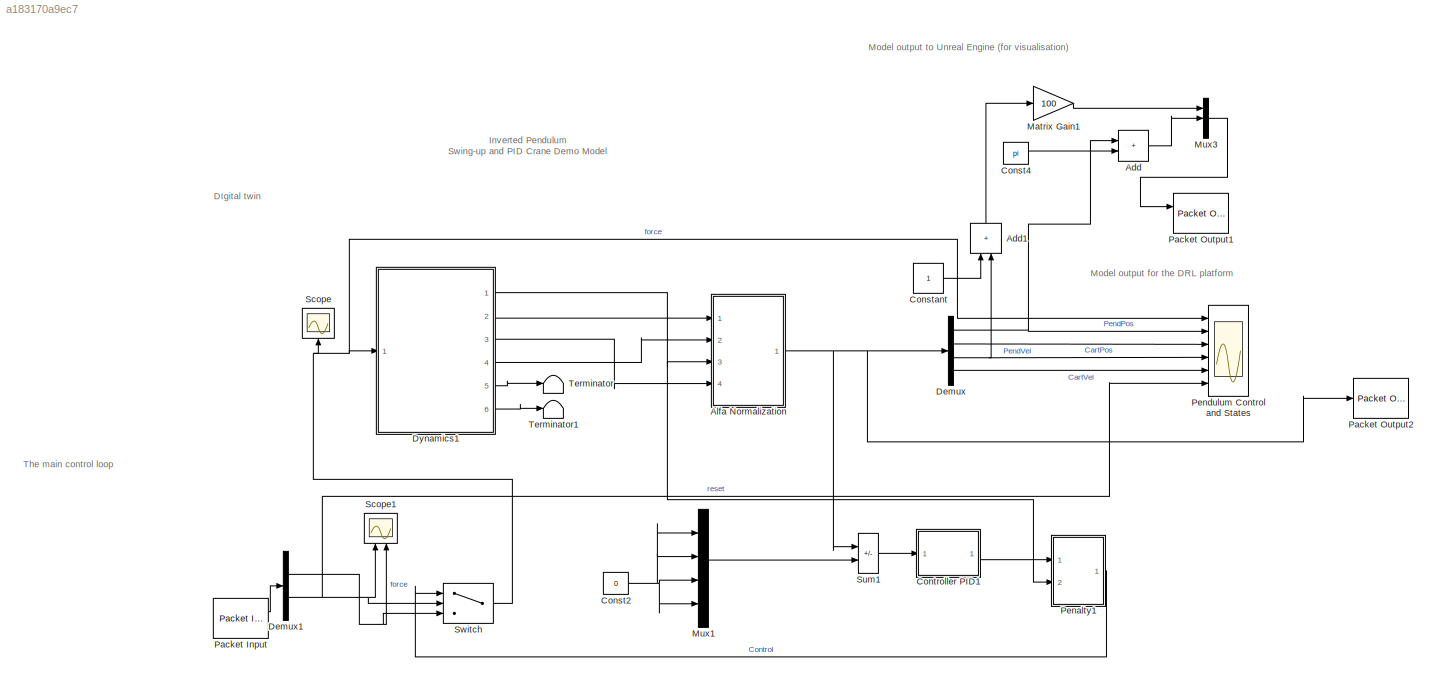
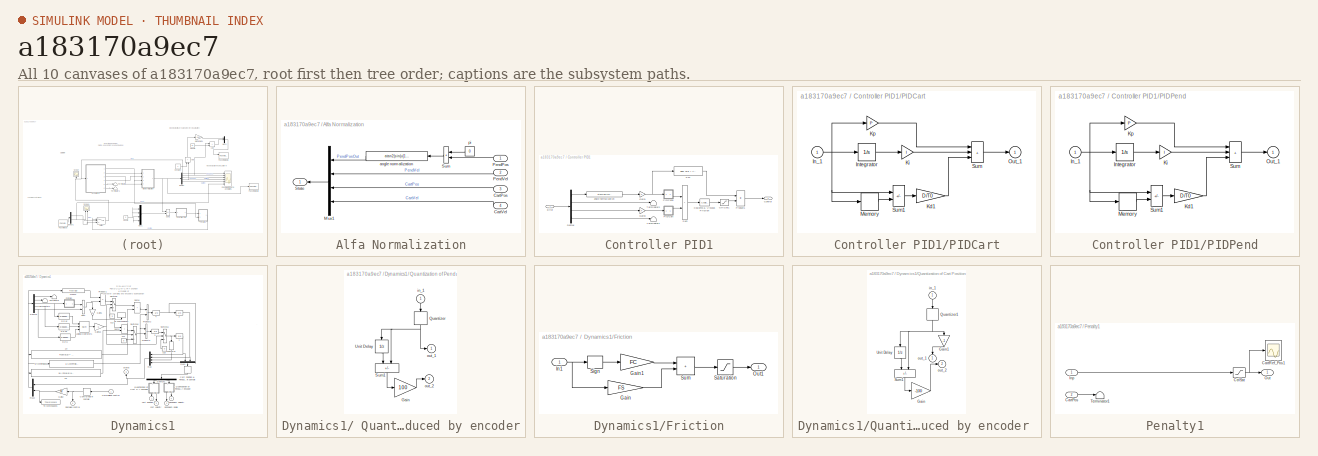
[diagram: thumbnail index - all 10 canvases of the model, root first then tree order]
MODEL slx_a183170a9ec7
KIND model
CONFIG AbsTol = 1e-6
CONFIG EnableMultiTasking = off
CONFIG FixedStep = 0.01
CONFIG MaxStep = auto
CONFIG MinStep = auto
CONFIG RelTol = 1e-3
CONFIG SampleTimeConstraint = Unconstrained
CONFIG SolverName = ode5
CONFIG StartTime = 0.0
CONFIG StopTime = inf
BLOCK [Sum] Add
  IconShape = rectangular
  Ports = [2, 1]
BLOCK [Sum] Add1
  IconShape = rectangular
  NameLocation = right
  Ports = [2, 1]
BLOCK [SubSystem] Alfa Normalization
  Ports = [4, 1]
  RequestExecContextInheritance = off
BLOCK [Inport] Alfa Normalization/CartPos
  Port = 3
BLOCK [Inport] Alfa Normalization/CartVel
  Port = 4
BLOCK [Mux] Alfa Normalization/Mux1
  NameLocation = top
  Ports = [4, 1]
BLOCK [Inport] Alfa Normalization/PendPos
BLOCK [Inport] Alfa Normalization/PendVel
  Port = 2
BLOCK [Outport] Alfa Normalization/State
  InitialOutput = 0
  VectorParamsAs1DForOutWhenUnconnected = off
BLOCK [Sum] Alfa Normalization/Sum
  IconShape = rectangular
  InputSameDT = on
  NameLocation = top
  OutDataTypeStr = Inherit: Same as first input
  Ports = [2, 1]
  SaturateOnIntegerOverflow = on
BLOCK [Fcn] Alfa Normalization/angle normalization
  Expr = atan2(sin(u[1]),cos(u[1]))
  NameLocation = top
BLOCK [Constant] Alfa Normalization/pi
  NameLocation = top
  Value = 0
BLOCK [Constant] Const2
  Value = 0
BLOCK [Constant] Const4
  Value = pi
BLOCK [Constant] Constant
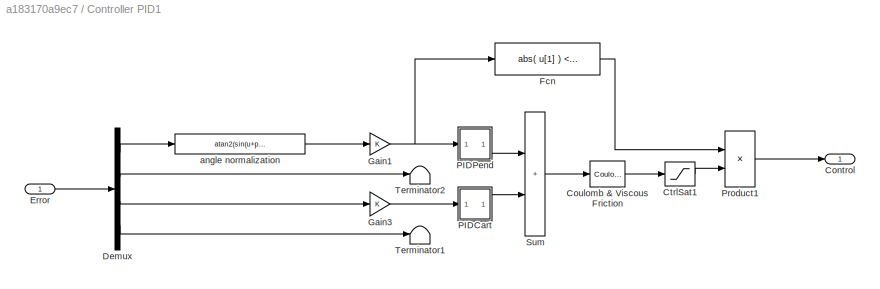
BLOCK [SubSystem] Controller PID1
  Ports = [1, 1]
  RequestExecContextInheritance = off
BLOCK [Outport] Controller PID1/Control
  InitialOutput = 0
  NameLocation = top
  VectorParamsAs1DForOutWhenUnconnected = off
BLOCK [Reference] Controller PID1/Coulomb & Viscous Friction  REF=simulink/Discontinuities/Coulomb &
Viscous Friction
  Ports = [1, 1]
  SourceBlock = simulink/Discontinuities/Coulomb &\nViscous Friction
  SourceProductBaseCode = SL
  SourceType = Coulombic and Viscous Friction
BLOCK [Saturate] Controller PID1/CtrlSat1
  LowerLimit = -Umax
  UpperLimit = Umax
BLOCK [Demux] Controller PID1/Demux
  DisplayOption = none
  Ports = [1, 4]
BLOCK [Inport] Controller PID1/Error
  NameLocation = top
BLOCK [Fcn] Controller PID1/Fcn
  Expr = abs( u[1] ) < zone
BLOCK [Gain] Controller PID1/Gain1
  OutDataTypeStr = Inherit: Same as input
  ParamDataTypeStr = Inherit: Same as input
  SaturateOnIntegerOverflow = on
BLOCK [Gain] Controller PID1/Gain3
  OutDataTypeStr = Inherit: Same as input
  ParamDataTypeStr = Inherit: Same as input
  SaturateOnIntegerOverflow = on
BLOCK [SubSystem] Controller PID1/PIDCart
  Ports = [1, 1]
  RequestExecContextInheritance = off
BLOCK [Inport] Controller PID1/PIDCart/In_1
BLOCK [Integrator] Controller PID1/PIDCart/Integrator
  LimitOutput = on
  LowerSaturationLimit = -1
  Ports = [1, 1]
  UpperSaturationLimit = 1
BLOCK [Gain] Controller PID1/PIDCart/Kd1
  Gain = D/T0
  OutDataTypeStr = Inherit: Same as input
  ParamDataTypeStr = Inherit: Same as input
  SaturateOnIntegerOverflow = on
BLOCK [Gain] Controller PID1/PIDCart/Ki
  Gain = I
  OutDataTypeStr = Inherit: Same as input
  ParamDataTypeStr = Inherit: Same as input
  SaturateOnIntegerOverflow = on
BLOCK [Gain] Controller PID1/PIDCart/Kp
  Gain = P
  OutDataTypeStr = Inherit: Same as input
  ParamDataTypeStr = Inherit: Same as input
  SaturateOnIntegerOverflow = on
BLOCK [Memory] Controller PID1/PIDCart/Memory
BLOCK [Outport] Controller PID1/PIDCart/Out_1
  InitialOutput = 0
  VectorParamsAs1DForOutWhenUnconnected = off
BLOCK [Sum] Controller PID1/PIDCart/Sum
  IconShape = rectangular
  InputSameDT = on
  Inputs = +++
  OutDataTypeStr = Inherit: Same as first input
  Ports = [3, 1]
  SaturateOnIntegerOverflow = on
BLOCK [Sum] Controller PID1/PIDCart/Sum1
  IconShape = rectangular
  InputSameDT = on
  Inputs = +-
  OutDataTypeStr = Inherit: Same as first input
  Ports = [2, 1]
  SaturateOnIntegerOverflow = on
BLOCK [SubSystem] Controller PID1/PIDPend
  Ports = [1, 1]
  RequestExecContextInheritance = off
BLOCK [Inport] Controller PID1/PIDPend/In_1
BLOCK [Integrator] Controller PID1/PIDPend/Integrator
  LimitOutput = on
  LowerSaturationLimit = -1
  Ports = [1, 1]
  UpperSaturationLimit = 1
BLOCK [Gain] Controller PID1/PIDPend/Kd1
  Gain = D/T0
  OutDataTypeStr = Inherit: Same as input
  ParamDataTypeStr = Inherit: Same as input
  SaturateOnIntegerOverflow = on
BLOCK [Gain] Controller PID1/PIDPend/Ki
  Gain = I
  OutDataTypeStr = Inherit: Same as input
  ParamDataTypeStr = Inherit: Same as input
  SaturateOnIntegerOverflow = on
BLOCK [Gain] Controller PID1/PIDPend/Kp
  Gain = P
  OutDataTypeStr = Inherit: Same as input
  ParamDataTypeStr = Inherit: Same as input
  SaturateOnIntegerOverflow = on
BLOCK [Memory] Controller PID1/PIDPend/Memory
BLOCK [Outport] Controller PID1/PIDPend/Out_1
  InitialOutput = 0
  VectorParamsAs1DForOutWhenUnconnected = off
BLOCK [Sum] Controller PID1/PIDPend/Sum
  IconShape = rectangular
  InputSameDT = on
  Inputs = +++
  OutDataTypeStr = Inherit: Same as first input
  Ports = [3, 1]
  SaturateOnIntegerOverflow = on
BLOCK [Sum] Controller PID1/PIDPend/Sum1
  IconShape = rectangular
  InputSameDT = on
  Inputs = +-
  OutDataTypeStr = Inherit: Same as first input
  Ports = [2, 1]
  SaturateOnIntegerOverflow = on
BLOCK [Product] Controller PID1/Product1
  InputSameDT = on
  OutDataTypeStr = Inherit: Same as first input
  Ports = [2, 1]
  RndMeth = Zero
  SaturateOnIntegerOverflow = on
BLOCK [Sum] Controller PID1/Sum
  IconShape = rectangular
  InputSameDT = on
  OutDataTypeStr = Inherit: Same as first input
  Ports = [2, 1]
  SaturateOnIntegerOverflow = on
BLOCK [Terminator] Controller PID1/Terminator1
BLOCK [Terminator] Controller PID1/Terminator2
BLOCK [Fcn] Controller PID1/angle normalization
  Expr = atan2(sin(u+pi),cos(u+pi))
BLOCK [Demux] Demux
  DisplayOption = none
  Ports = [1, 4]
BLOCK [Demux] Demux1
  DisplayOption = none
  Outputs = 2
  Ports = [1, 2]
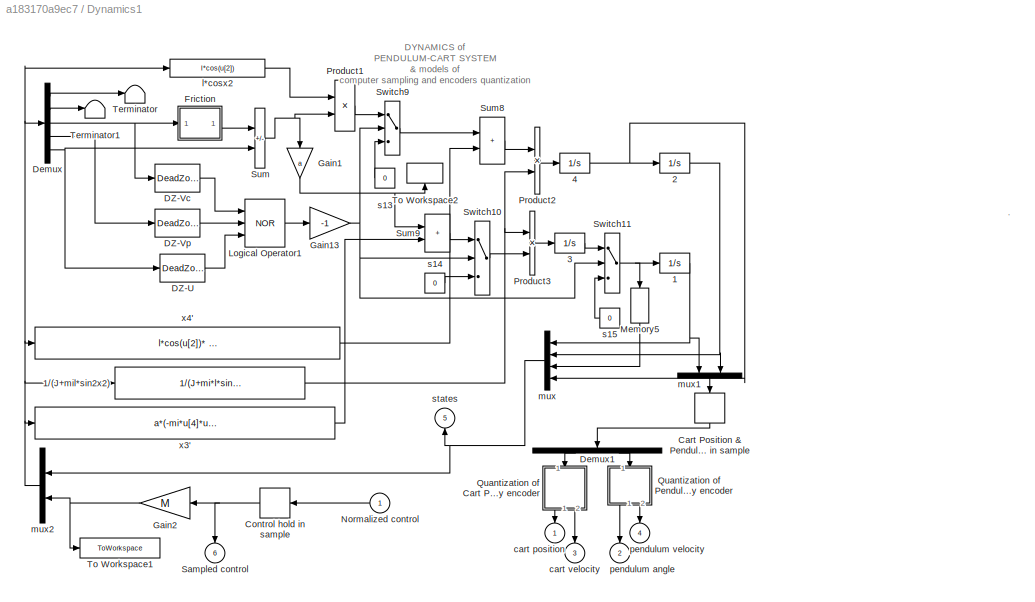
BLOCK [SubSystem] Dynamics1
  Ports = [1, 6]
  RequestExecContextInheritance = off
  ShowPortLabels = none
BLOCK [SubSystem] Dynamics1/ Quantization of Pendulum Angle introduced by encoder
  NameLocation = right
  Ports = [1, 2]
  RequestExecContextInheritance = off
  ShowPortLabels = none
BLOCK [Gain] Dynamics1/ Quantization of Pendulum Angle introduced by encoder/Gain
  Gain = 100
  OutDataTypeStr = Inherit: Same as input
  ParamDataTypeStr = Inherit: Same as input
  SaturateOnIntegerOverflow = on
BLOCK [Quantizer] Dynamics1/ Quantization of Pendulum Angle introduced by encoder/Quantizer
  NameLocation = left
  QuantizationInterval = 0.001534
BLOCK [Sum] Dynamics1/ Quantization of Pendulum Angle introduced by encoder/Sum1
  IconShape = rectangular
  InputSameDT = on
  Inputs = -+
  NameLocation = left
  OutDataTypeStr = Inherit: Same as first input
  Ports = [2, 1]
  SaturateOnIntegerOverflow = on
BLOCK [UnitDelay] Dynamics1/ Quantization of Pendulum Angle introduced by encoder/Unit Delay
  HasFrameUpgradeWarning = on
  InitialCondition = x_ini(2)
  NameLocation = left
  SampleTime = 0.01
BLOCK [Inport] Dynamics1/ Quantization of Pendulum Angle introduced by encoder/in_1
  NameLocation = right
BLOCK [Outport] Dynamics1/ Quantization of Pendulum Angle introduced by encoder/out_1
  InitialOutput = 0
  NameLocation = top
BLOCK [Outport] Dynamics1/ Quantization of Pendulum Angle introduced by encoder/out_2
  InitialOutput = 0
  Port = 2
BLOCK [Integrator] Dynamics1/1
  InitialCondition = x_ini(1)
  Ports = [1, 1]
BLOCK [Fcn] Dynamics1/1//(J+mil*sin2x2)
  Expr = 1/(J+mi*l*sin(u[2])*sin(u[2]))
BLOCK [Integrator] Dynamics1/2
  InitialCondition = x_ini(2)
  Ports = [1, 1]
BLOCK [Integrator] Dynamics1/3
  InitialCondition = x_ini(3)
  Ports = [1, 1]
BLOCK [Integrator] Dynamics1/4
  InitialCondition = x_ini(4)
  Ports = [1, 1]
BLOCK [ZeroOrderHold] Dynamics1/Cart Position & Pendulum Angle hold in sample
  NameLocation = left
  SampleTime = 0.01
BLOCK [ZeroOrderHold] Dynamics1/Control hold in sample
  SampleTime = 0.01
BLOCK [DeadZone] Dynamics1/DZ-U
  LowerValue = -DZu
  UpperValue = DZu
BLOCK [DeadZone] Dynamics1/DZ-Vc
  LowerValue = -DZcv
  UpperValue = DZcv
BLOCK [DeadZone] Dynamics1/DZ-Vp
  LowerValue = -DZcp
  UpperValue = DZcp
BLOCK [Demux] Dynamics1/Demux
  DisplayOption = none
  Outputs = 5
  Ports = [1, 5]
BLOCK [Demux] Dynamics1/Demux1
  DisplayOption = none
  NameLocation = left
  Outputs = 2
  Ports = [1, 2]
BLOCK [SubSystem] Dynamics1/Friction
  NameLocation = top
  Ports = [1, 1]
  RequestExecContextInheritance = off
BLOCK [Gain] Dynamics1/Friction/Gain
  Gain = FS
  OutDataTypeStr = Inherit: Same as input
  ParamDataTypeStr = Inherit: Same as input
  SaturateOnIntegerOverflow = on
BLOCK [Gain] Dynamics1/Friction/Gain1
  Gain = FC
  OutDataTypeStr = Inherit: Same as input
  ParamDataTypeStr = Inherit: Same as input
  SaturateOnIntegerOverflow = on
BLOCK [Inport] Dynamics1/Friction/In1
BLOCK [Outport] Dynamics1/Friction/Out1
  InitialOutput = 0
BLOCK [Saturate] Dynamics1/Friction/Saturation
  LowerLimit = -1
  UpperLimit = 1
BLOCK [Signum] Dynamics1/Friction/Sign
BLOCK [Sum] Dynamics1/Friction/Sum
  IconShape = rectangular
  InputSameDT = on
  OutDataTypeStr = Inherit: Same as first input
  Ports = [2, 1]
  SaturateOnIntegerOverflow = on
BLOCK [Gain] Dynamics1/Gain1
  Gain = a
  NameLocation = right
  OutDataTypeStr = Inherit: Same as input
  ParamDataTypeStr = Inherit: Same as input
  SaturateOnIntegerOverflow = on
BLOCK [Gain] Dynamics1/Gain13
  Gain = -1
  OutDataTypeStr = Inherit: Same as input
  ParamDataTypeStr = Inherit: Same as input
  SaturateOnIntegerOverflow = on
BLOCK [Gain] Dynamics1/Gain2
  Gain = M
  OutDataTypeStr = Inherit: Same as input
  ParamDataTypeStr = Inherit: Same as input
  SaturateOnIntegerOverflow = on
BLOCK [Logic] Dynamics1/Logical Operator1
  Inputs = 3
  Operator = NOR
  Ports = [3, 1]
BLOCK [Memory] Dynamics1/Memory5
  NameLocation = right
BLOCK [Inport] Dynamics1/Normalized control
BLOCK [Product] Dynamics1/Product1
  InputSameDT = on
  OutDataTypeStr = Inherit: Same as first input
  Ports = [2, 1]
  RndMeth = Zero
  SaturateOnIntegerOverflow = on
BLOCK [Product] Dynamics1/Product2
  InputSameDT = on
  OutDataTypeStr = Inherit: Same as first input
  Ports = [2, 1]
  RndMeth = Zero
  SaturateOnIntegerOverflow = on
BLOCK [Product] Dynamics1/Product3
  InputSameDT = on
  OutDataTypeStr = Inherit: Same as first input
  Ports = [2, 1]
  RndMeth = Zero
  SaturateOnIntegerOverflow = on
BLOCK [SubSystem] Dynamics1/Quantization of Cart Position introduced by encoder 
  NameLocation = left
  Ports = [1, 2]
  RequestExecContextInheritance = off
  ShowPortLabels = none
BLOCK [Gain] Dynamics1/Quantization of Cart Position introduced by encoder /Gain
  Gain = -100
  OutDataTypeStr = Inherit: Same as input
  ParamDataTypeStr = Inherit: Same as input
  SaturateOnIntegerOverflow = on
BLOCK [Gain] Dynamics1/Quantization of Cart Position introduced by encoder /Gain1
  Gain = -1
  NameLocation = left
BLOCK [Quantizer] Dynamics1/Quantization of Cart Position introduced by encoder /Quantizer1
  NameLocation = left
  QuantizationInterval = 5.7053e-005
BLOCK [Sum] Dynamics1/Quantization of Cart Position introduced by encoder /Sum1
  IconShape = rectangular
  InputSameDT = on
  Inputs = -+
  NameLocation = left
  OutDataTypeStr = Inherit: Same as first input
  Ports = [2, 1]
  SaturateOnIntegerOverflow = on
BLOCK [UnitDelay] Dynamics1/Quantization of Cart Position introduced by encoder /Unit Delay
  HasFrameUpgradeWarning = on
  InitialCondition = x_ini(1)
  NameLocation = left
  SampleTime = 0.01
BLOCK [Inport] Dynamics1/Quantization of Cart Position introduced by encoder /in_1
  NameLocation = right
BLOCK [Outport] Dynamics1/Quantization of Cart Position introduced by encoder /out_1
  InitialOutput = 0
  NameLocation = right
BLOCK [Outport] Dynamics1/Quantization of Cart Position introduced by encoder /out_2
  InitialOutput = 0
  Port = 2
BLOCK [Outport] Dynamics1/Sampled control
  InitialOutput = 0
  NameLocation = right
  Port = 6
BLOCK [Sum] Dynamics1/Sum
  IconShape = rectangular
  InputSameDT = on
  Inputs = -+
  OutDataTypeStr = Inherit: Same as first input
  Ports = [2, 1]
  SaturateOnIntegerOverflow = on
BLOCK [Sum] Dynamics1/Sum8
  IconShape = rectangular
  InputSameDT = on
  OutDataTypeStr = Inherit: Same as first input
  Ports = [2, 1]
  SaturateOnIntegerOverflow = on
BLOCK [Sum] Dynamics1/Sum9
  IconShape = rectangular
  InputSameDT = on
  OutDataTypeStr = Inherit: Same as first input
  Ports = [2, 1]
  SaturateOnIntegerOverflow = on
BLOCK [Switch] Dynamics1/Switch10
BLOCK [Switch] Dynamics1/Switch11
BLOCK [Switch] Dynamics1/Switch9
BLOCK [Terminator] Dynamics1/Terminator
BLOCK [Terminator] Dynamics1/Terminator1
BLOCK [ToWorkspace] Dynamics1/To Workspace1
  MaxDataPoints = 100000
  NameLocation = top
  Ports = [1]
  VariableName = Control_Newton
BLOCK [ToWorkspace] Dynamics1/To Workspace2
  MaxDataPoints = 100000
  NameLocation = right
  Ports = [1]
  VariableName = fric
BLOCK [Outport] Dynamics1/cart position
  InitialOutput = 0
  NameLocation = left
BLOCK [Outport] Dynamics1/cart velocity
  InitialOutput = 0
  NameLocation = left
  Port = 3
BLOCK [Fcn] Dynamics1/l*cosx2
  Expr = l*cos(u[2])
BLOCK [Mux] Dynamics1/mux
  Ports = [4, 1]
BLOCK [Mux] Dynamics1/mux1
  Inputs = 2
  NameLocation = right
  Ports = [2, 1]
BLOCK [Mux] Dynamics1/mux2
  Inputs = [4 1]
  Ports = [2, 1]
BLOCK [Outport] Dynamics1/pendulum angle
  InitialOutput = 0
  NameLocation = right
  Port = 2
BLOCK [Outport] Dynamics1/pendulum velocity
  InitialOutput = 0
  NameLocation = right
  Port = 4
BLOCK [Constant] Dynamics1/s13
  NameLocation = top
  Value = 0
BLOCK [Constant] Dynamics1/s14
  NameLocation = top
  Value = 0
BLOCK [Constant] Dynamics1/s15
  NameLocation = top
  Value = 0
BLOCK [Outport] Dynamics1/states
  InitialOutput = 0
  NameLocation = left
  Port = 5
BLOCK [Fcn] Dynamics1/x3'
  Expr = a*(-mi*u[4]*u[4]*sin(u[2]) )+l*cos(u[2])*(mi*g*sin(u[2])-fp*u[4])
BLOCK [Fcn] Dynamics1/x4'
  Expr = l*cos(u[2])* (-mi*u[4]*u[4]*sin(u[2])) + mi*g*sin(u[2])-fp*u[4]
BLOCK [Gain] Matrix Gain1
  Gain = 100
  OutDataTypeStr = Inherit: Same as input
  ParamDataTypeStr = Inherit: Same as input
  SaturateOnIntegerOverflow = on
BLOCK [Mux] Mux1
  Ports = [4, 1]
BLOCK [Mux] Mux3
  DisplayOption = bar
  Inputs = 3
  Ports = [3, 1]
BLOCK [Reference] Packet Input  REF=sldrtlib/Packet Input
  AttributesFormatString = UDP Protocol [16384]
  Ports = [0, 2]
  SourceBlock = sldrtlib/Packet Input
  SourceProductBaseCode = WT
  SourceType = Simulink Desktop Real-Time Packet Input
BLOCK [Reference] Packet Output1  REF=sldrtlib/Packet Output
  AttributesFormatString = UDP Protocol [9999]
  Ports = [2, 1]
  SourceBlock = sldrtlib/Packet Output
  SourceProductBaseCode = WT
  SourceType = Simulink Desktop Real-Time Packet Output
BLOCK [Reference] Packet Output2  REF=sldrtlib/Packet Output
  AttributesFormatString = UDP Protocol [16385]
  Ports = [1, 1]
  SourceBlock = sldrtlib/Packet Output
  SourceProductBaseCode = WT
  SourceType = Simulink Desktop Real-Time Packet Output
BLOCK [SubSystem] Penalty1
  Ports = [2, 1]
  RequestExecContextInheritance = off
BLOCK [Inport] Penalty1/CartPos
  Port = 2
BLOCK [Scope] Penalty1/CartRef_Pos1
  Floating = off
  NumInputPorts = 1
  Ports = [1]
  ScopeSpecificationString = Simulink.scopes.TimeScopeBlockCfg('CurrentConfiguration', extmgr.ConfigurationSet(extmgr.Configuration('Core','General UI',true),extmgr.Configuration('Core','Source UI',true),extmgr.Configuration('Sources','WiredSimulink',true,'DataLogging',true,'DataLoggingVariableName','Cart_refpos2','DataLoggingSaveFormat','StructureWithTime','DataLoggingMaxPoints','50000','DataLoggingLimitDataPoints',true,'Dat...<+1763ch>
BLOCK [Saturate] Penalty1/CtrlSat
BLOCK [Inport] Penalty1/Inp
BLOCK [Outport] Penalty1/Out
  VectorParamsAs1DForOutWhenUnconnected = off
BLOCK [Terminator] Penalty1/Terminator1
BLOCK [Scope] Pendulum Control and States
  ExtModeLoggingTrig = on
  ExtModeUploadOption = log
  Floating = off
  NumInputPorts = 6
  Ports = [6]
  ScopeSpecificationString = Simulink.scopes.TimeScopeBlockCfg('CurrentConfiguration', extmgr.ConfigurationSet(extmgr.Configuration('Core','General UI',true),extmgr.Configuration('Core','Source UI',true),extmgr.Configuration('Sources','WiredSimulink',true,'DataLogging',true,'DataLoggingVariableName','States','DataLoggingSaveFormat','StructureWithTime','DataLoggingMaxPoints','50000','DataLoggingLimitDataPoints',true,'DataLoggi...<+5170ch>
BLOCK [Scope] Scope
  Floating = off
  NameLocation = right
  NumInputPorts = 1
  Ports = [1]
  ScopeSpecificationString = Simulink.scopes.TimeScopeBlockCfg('CurrentConfiguration', extmgr.ConfigurationSet(extmgr.Configuration('Core','General UI',true),extmgr.Configuration('Core','Source UI',true),extmgr.Configuration('Sources','WiredSimulink',true,'DataLoggingVariableName','ScopeData1'),extmgr.Configuration('Visuals','Time Domain',true,'SerializedDisplays',{struct('MinYLimReal','-1.00000','MaxYLimReal','1.00000','YLab...<+1416ch>
BLOCK [Scope] Scope1
  Floating = off
  NameLocation = right
  NumInputPorts = 2
  Ports = [2]
  ScopeSpecificationString = Simulink.scopes.TimeScopeBlockCfg('CurrentConfiguration', extmgr.ConfigurationSet(extmgr.Configuration('Core','General UI',true),extmgr.Configuration('Core','Source UI',true),extmgr.Configuration('Sources','WiredSimulink',true,'DataLoggingVariableName','ScopeData2'),extmgr.Configuration('Visuals','Time Domain',true,'SerializedDisplays',{struct('MinYLimReal','0.9','MaxYLimReal','1.1','YLabelReal','...<+2054ch>
BLOCK [Sum] Sum1
  IconShape = rectangular
  InputSameDT = on
  Inputs = |-+
  OutDataTypeStr = Inherit: Same as first input
  Ports = [2, 1]
  SaturateOnIntegerOverflow = on
BLOCK [Switch] Switch
  Criteria = u2 > Threshold
  InputSameDT = off
  SaturateOnIntegerOverflow = off
BLOCK [Terminator] Terminator
BLOCK [Terminator] Terminator1
ANNOTATION (root): DIgital twin
ANNOTATION (root): Inverted Pendulum Swing-up and PID Crane Demo Model
ANNOTATION (root): Model output for the DRL platform
ANNOTATION (root): Model output to Unreal Engine (for visualisation)
ANNOTATION (root): The main control loop
ANNOTATION Dynamics1: .
ANNOTATION Dynamics1: DYNAMICS of PENDULUM-CART SYSTEM & models of computer sampling and encoders quantization
LINE Add1:1 -> Matrix Gain1:1
LINE Add:1 -> Mux3:2
LINE Alfa Normalization/CartPos:1 -> Alfa Normalization/Mux1:3
LINE Alfa Normalization/CartVel:1 -> Alfa Normalization/Mux1:4
LINE Alfa Normalization/Mux1:1 -> Alfa Normalization/State:1
LINE Alfa Normalization/PendPos:1 -> Alfa Normalization/Sum:2
LINE Alfa Normalization/PendVel:1 -> Alfa Normalization/Mux1:2
LINE Alfa Normalization/Sum:1 -> Alfa Normalization/angle normalization:1
LINE Alfa Normalization/angle normalization:1 -> Alfa Normalization/Mux1:1
LINE Alfa Normalization/pi:1 -> Alfa Normalization/Sum:1
NET Alfa Normalization:1 -> Demux:1, Packet Output2:1, Sum1:1
NET Const2:1 -> Mux1:1, Mux1:2, Mux1:3, Mux1:4
LINE Const4:1 -> Add:2
LINE Constant:1 -> Add1:1
LINE Controller PID1/Coulomb & Viscous Friction:1 -> Controller PID1/CtrlSat1:1
LINE Controller PID1/CtrlSat1:1 -> Controller PID1/Product1:2
LINE Controller PID1/Demux:1 -> Controller PID1/angle normalization:1
LINE Controller PID1/Demux:2 -> Controller PID1/Terminator2:1
LINE Controller PID1/Demux:3 -> Controller PID1/Gain3:1
LINE Controller PID1/Demux:4 -> Controller PID1/Terminator1:1
LINE Controller PID1/Error:1 -> Controller PID1/Demux:1
LINE Controller PID1/Fcn:1 -> Controller PID1/Product1:1
NET Controller PID1/Gain1:1 -> Controller PID1/Fcn:1, Controller PID1/PIDPend:1
LINE Controller PID1/Gain3:1 -> Controller PID1/PIDCart:1
NET Controller PID1/PIDCart/In_1:1 -> Controller PID1/PIDCart/Integrator:1, Controller PID1/PIDCart/Kp:1, Controller PID1/PIDCart/Memory:1, Controller PID1/PIDCart/Sum1:1
LINE Controller PID1/PIDCart/Integrator:1 -> Controller PID1/PIDCart/Ki:1
LINE Controller PID1/PIDCart/Kd1:1 -> Controller PID1/PIDCart/Sum:3
LINE Controller PID1/PIDCart/Ki:1 -> Controller PID1/PIDCart/Sum:2
LINE Controller PID1/PIDCart/Kp:1 -> Controller PID1/PIDCart/Sum:1
LINE Controller PID1/PIDCart/Memory:1 -> Controller PID1/PIDCart/Sum1:2
LINE Controller PID1/PIDCart/Sum1:1 -> Controller PID1/PIDCart/Kd1:1
LINE Controller PID1/PIDCart/Sum:1 -> Controller PID1/PIDCart/Out_1:1
LINE Controller PID1/PIDCart:1 -> Controller PID1/Sum:2
NET Controller PID1/PIDPend/In_1:1 -> Controller PID1/PIDPend/Integrator:1, Controller PID1/PIDPend/Kp:1, Controller PID1/PIDPend/Memory:1, Controller PID1/PIDPend/Sum1:1
LINE Controller PID1/PIDPend/Integrator:1 -> Controller PID1/PIDPend/Ki:1
LINE Controller PID1/PIDPend/Kd1:1 -> Controller PID1/PIDPend/Sum:3
LINE Controller PID1/PIDPend/Ki:1 -> Controller PID1/PIDPend/Sum:2
LINE Controller PID1/PIDPend/Kp:1 -> Controller PID1/PIDPend/Sum:1
LINE Controller PID1/PIDPend/Memory:1 -> Controller PID1/PIDPend/Sum1:2
LINE Controller PID1/PIDPend/Sum1:1 -> Controller PID1/PIDPend/Kd1:1
LINE Controller PID1/PIDPend/Sum:1 -> Controller PID1/PIDPend/Out_1:1
LINE Controller PID1/PIDPend:1 -> Controller PID1/Sum:1
LINE Controller PID1/Product1:1 -> Controller PID1/Control:1
LINE Controller PID1/Sum:1 -> Controller PID1/Coulomb & Viscous Friction:1
LINE Controller PID1/angle normalization:1 -> Controller PID1/Gain1:1
LINE Controller PID1:1 -> Penalty1:1
NET Demux1:1 -> Scope1:2, Switch:3
NET Demux1:2 -> Pendulum Control and States:6, Scope1:1, Switch:2
NET Demux:1 -> Add:1, Pendulum Control and States:2
LINE Demux:2 -> Pendulum Control and States:3
NET Demux:3 -> Add1:2, Pendulum Control and States:4
LINE Demux:4 -> Pendulum Control and States:5
LINE Dynamics1/ Quantization of Pendulum Angle introduced by encoder/Gain:1 -> Dynamics1/ Quantization of Pendulum Angle introduced by encoder/out_2:1
NET Dynamics1/ Quantization of Pendulum Angle introduced by encoder/Quantizer:1 -> Dynamics1/ Quantization of Pendulum Angle introduced by encoder/Sum1:2, Dynamics1/ Quantization of Pendulum Angle introduced by encoder/Unit Delay:1, Dynamics1/ Quantization of Pendulum Angle introduced by encoder/out_1:1
LINE Dynamics1/ Quantization of Pendulum Angle introduced by encoder/Sum1:1 -> Dynamics1/ Quantization of Pendulum Angle introduced by encoder/Gain:1
LINE Dynamics1/ Quantization of Pendulum Angle introduced by encoder/Unit Delay:1 -> Dynamics1/ Quantization of Pendulum Angle introduced by encoder/Sum1:1
LINE Dynamics1/ Quantization of Pendulum Angle introduced by encoder/in_1:1 -> Dynamics1/ Quantization of Pendulum Angle introduced by encoder/Quantizer:1
LINE Dynamics1/ Quantization of Pendulum Angle introduced by encoder:1 -> Dynamics1/pendulum angle:1
LINE Dynamics1/ Quantization of Pendulum Angle introduced by encoder:2 -> Dynamics1/pendulum velocity:1
NET Dynamics1/1//(J+mil*sin2x2):1 -> Dynamics1/Product2:2, Dynamics1/Product3:1
NET Dynamics1/1:1 -> Dynamics1/mux1:1, Dynamics1/mux:1
NET Dynamics1/2:1 -> Dynamics1/mux1:2, Dynamics1/mux:2
LINE Dynamics1/3:1 -> Dynamics1/Switch11:1
NET Dynamics1/4:1 -> Dynamics1/2:1, Dynamics1/mux:4
LINE Dynamics1/Cart Position & Pendulum Angle hold in sample:1 -> Dynamics1/Demux1:1
NET Dynamics1/Control hold in sample:1 -> Dynamics1/Gain2:1, Dynamics1/Sampled control:1
LINE Dynamics1/DZ-U:1 -> Dynamics1/Logical Operator1:3
LINE Dynamics1/DZ-Vc:1 -> Dynamics1/Logical Operator1:1
LINE Dynamics1/DZ-Vp:1 -> Dynamics1/Logical Operator1:2
LINE Dynamics1/Demux1:1 -> Dynamics1/Quantization of Cart Position introduced by encoder :1
LINE Dynamics1/Demux1:2 -> Dynamics1/ Quantization of Pendulum Angle introduced by encoder:1
LINE Dynamics1/Demux:1 -> Dynamics1/Terminator:1
LINE Dynamics1/Demux:2 -> Dynamics1/Terminator1:1
NET Dynamics1/Demux:3 -> Dynamics1/DZ-Vc:1, Dynamics1/Friction:1
LINE Dynamics1/Demux:4 -> Dynamics1/DZ-Vp:1
NET Dynamics1/Demux:5 -> Dynamics1/DZ-U:1, Dynamics1/Sum:2
LINE Dynamics1/Friction/Gain1:1 -> Dynamics1/Friction/Sum:1
LINE Dynamics1/Friction/Gain:1 -> Dynamics1/Friction/Sum:2
NET Dynamics1/Friction/In1:1 -> Dynamics1/Friction/Gain:1, Dynamics1/Friction/Sign:1
LINE Dynamics1/Friction/Saturation:1 -> Dynamics1/Friction/Out1:1
LINE Dynamics1/Friction/Sign:1 -> Dynamics1/Friction/Gain1:1
LINE Dynamics1/Friction/Sum:1 -> Dynamics1/Friction/Saturation:1
LINE Dynamics1/Friction:1 -> Dynamics1/Sum:1
NET Dynamics1/Gain13:1 -> Dynamics1/Switch10:2, Dynamics1/Switch11:2, Dynamics1/Switch9:2
NET Dynamics1/Gain1:1 -> Dynamics1/Sum9:1, Dynamics1/To Workspace2:1
NET Dynamics1/Gain2:1 -> Dynamics1/To Workspace1:1, Dynamics1/mux2:2
LINE Dynamics1/Logical Operator1:1 -> Dynamics1/Gain13:1
LINE Dynamics1/Memory5:1 -> Dynamics1/mux:3
LINE Dynamics1/Normalized control:1 -> Dynamics1/Control hold in sample:1
LINE Dynamics1/Product1:1 -> Dynamics1/Switch9:1
LINE Dynamics1/Product2:1 -> Dynamics1/4:1
LINE Dynamics1/Product3:1 -> Dynamics1/3:1
LINE Dynamics1/Quantization of Cart Position introduced by encoder /Gain1:1 -> Dynamics1/Quantization of Cart Position introduced by encoder /out_1:1
LINE Dynamics1/Quantization of Cart Position introduced by encoder /Gain:1 -> Dynamics1/Quantization of Cart Position introduced by encoder /out_2:1
NET Dynamics1/Quantization of Cart Position introduced by encoder /Quantizer1:1 -> Dynamics1/Quantization of Cart Position introduced by encoder /Gain1:1, Dynamics1/Quantization of Cart Position introduced by encoder /Sum1:2, Dynamics1/Quantization of Cart Position introduced by encoder /Unit Delay:1
LINE Dynamics1/Quantization of Cart Position introduced by encoder /Sum1:1 -> Dynamics1/Quantization of Cart Position introduced by encoder /Gain:1
LINE Dynamics1/Quantization of Cart Position introduced by encoder /Unit Delay:1 -> Dynamics1/Quantization of Cart Position introduced by encoder /Sum1:1
LINE Dynamics1/Quantization of Cart Position introduced by encoder /in_1:1 -> Dynamics1/Quantization of Cart Position introduced by encoder /Quantizer1:1
LINE Dynamics1/Quantization of Cart Position introduced by encoder :1 -> Dynamics1/cart position:1
LINE Dynamics1/Quantization of Cart Position introduced by encoder :2 -> Dynamics1/cart velocity:1
LINE Dynamics1/Sum8:1 -> Dynamics1/Product2:1
LINE Dynamics1/Sum9:1 -> Dynamics1/Switch10:1
NET Dynamics1/Sum:1 -> Dynamics1/Gain1:1, Dynamics1/Product1:2
LINE Dynamics1/Switch10:1 -> Dynamics1/Product3:2
NET Dynamics1/Switch11:1 -> Dynamics1/1:1, Dynamics1/Memory5:1
LINE Dynamics1/Switch9:1 -> Dynamics1/Sum8:1
LINE Dynamics1/l*cosx2:1 -> Dynamics1/Product1:1
LINE Dynamics1/mux1:1 -> Dynamics1/Cart Position & Pendulum Angle hold in sample:1
NET Dynamics1/mux2:1 -> Dynamics1/1//(J+mil*sin2x2):1, Dynamics1/Demux:1, Dynamics1/l*cosx2:1, Dynamics1/x3':1, Dynamics1/x4':1
NET Dynamics1/mux:1 -> Dynamics1/mux2:1, Dynamics1/states:1
LINE Dynamics1/s13:1 -> Dynamics1/Switch9:3
LINE Dynamics1/s14:1 -> Dynamics1/Switch10:3
LINE Dynamics1/s15:1 -> Dynamics1/Switch11:3
LINE Dynamics1/x3':1 -> Dynamics1/Sum9:2
LINE Dynamics1/x4':1 -> Dynamics1/Sum8:2
NET Dynamics1:1 -> Alfa Normalization:3, Penalty1:2
LINE Dynamics1:2 -> Alfa Normalization:1
LINE Dynamics1:3 -> Alfa Normalization:4
LINE Dynamics1:4 -> Alfa Normalization:2
LINE Dynamics1:5 -> Terminator:1
LINE Dynamics1:6 -> Terminator1:1
LINE Matrix Gain1:1 -> Mux3:1
LINE Mux1:1 -> Sum1:2
LINE Mux3:1 -> Packet Output1:1
LINE Packet Input:1 -> Demux1:1
LINE Penalty1/CartPos:1 -> Penalty1/Terminator1:1
NET Penalty1/CtrlSat:1 -> Penalty1/CartRef_Pos1:1, Penalty1/Out:1
LINE Penalty1/Inp:1 -> Penalty1/CtrlSat:1
LINE Penalty1:1 -> Switch:1
LINE Sum1:1 -> Controller PID1:1
NET Switch:1 -> Dynamics1:1, Pendulum Control and States:1, Scope:1
note: NET lines group one-source signal fan-out (src -> all destinations, sorted); 1:1 wires keep LINE
